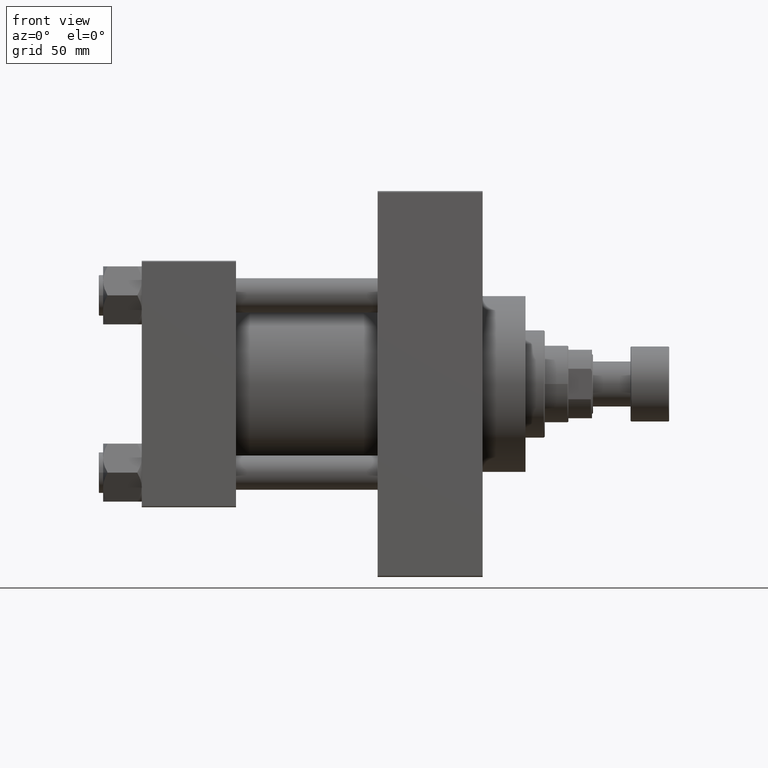
[diagram: clean part render]
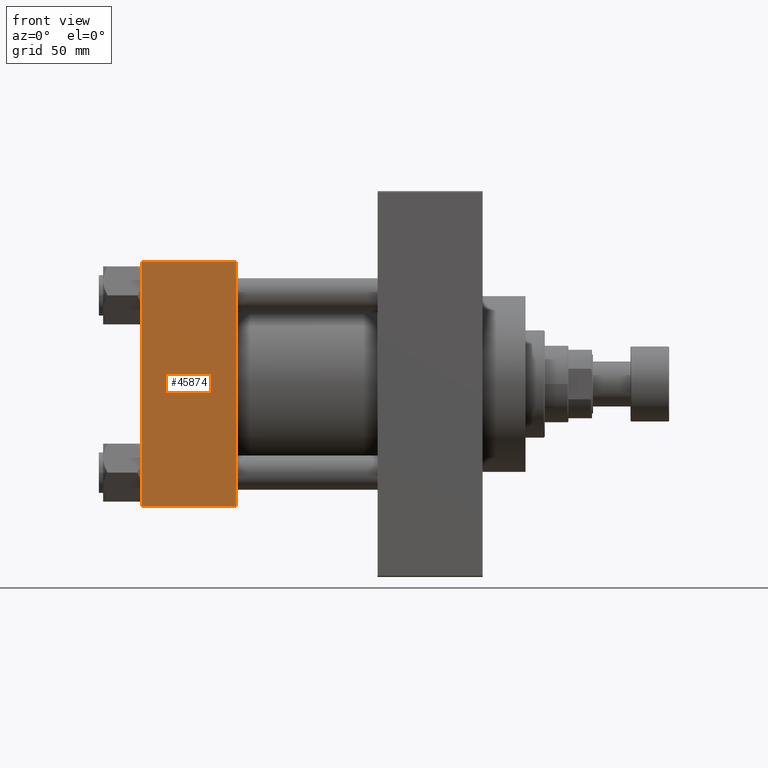
[diagram: same view with one face highlighted and labeled with its STEP entity id]
A machine part, front view. The second image highlights one B-rep face of the part: STEP entity #45874.
In plain terms, the highlighted planar face has unit normal (0, 1, 0).
Its self-contained STEP definition (entity closure, byte-faithful):
#427 = VECTOR ( 'NONE', #15206, 1000.000000000000000 ) ;
#2310 = AXIS2_PLACEMENT_3D ( 'NONE', #30068, #44427, #22270 ) ;
#2466 = DIRECTION ( 'NONE',  ( 1.000000000000000000, 0.000000000000000000, 0.000000000000000000 ) ) ;
#2855 = EDGE_CURVE ( 'NONE', #34028, #26543, #12947, .T. ) ;
#4113 = CARTESIAN_POINT ( 'NONE',  ( 0.000000000000000000, -57.50000000000000711, 57.00000000000000711 ) ) ;
#4400 = CARTESIAN_POINT ( 'NONE',  ( 44.00000000000000000, -57.50000000000000711, 57.00000000000000711 ) ) ;
#4475 = CARTESIAN_POINT ( 'NONE',  ( 0.000000000000000000, -57.50000000000000711, -57.00000000000000711 ) ) ;
#6117 = LINE ( 'NONE', #46044, #27859 ) ;
#6197 = VERTEX_POINT ( 'NONE', #4400 ) ;
#7821 = VERTEX_POINT ( 'NONE', #4113 ) ;
#10242 = ORIENTED_EDGE ( 'NONE', *, *, #38422, .T. ) ;
#11078 = CARTESIAN_POINT ( 'NONE',  ( 44.00000000000000000, -57.50000000000000711, 57.49999999999999289 ) ) ;
#12947 = LINE ( 'NONE', #38985, #36439 ) ;
#14698 = ORIENTED_EDGE ( 'NONE', *, *, #47608, .T. ) ;
#15206 = DIRECTION ( 'NONE',  ( 0.000000000000000000, 0.000000000000000000, -1.000000000000000000 ) ) ;
#15255 = CARTESIAN_POINT ( 'NONE',  ( 44.00000000000000000, -57.50000000000000711, -57.00000000000000711 ) ) ;
#22270 = DIRECTION ( 'NONE',  ( 0.000000000000000000, -0.000000000000000000, 1.000000000000000000 ) ) ;
#24963 = PLANE ( 'NONE',  #2310 ) ;
#26166 = VECTOR ( 'NONE', #27202, 1000.000000000000000 ) ;
#26543 = VERTEX_POINT ( 'NONE', #15255 ) ;
#27202 = DIRECTION ( 'NONE',  ( 0.000000000000000000, 0.000000000000000000, -1.000000000000000000 ) ) ;
#27859 = VECTOR ( 'NONE', #28266, 1000.000000000000000 ) ;
#28266 = DIRECTION ( 'NONE',  ( -1.000000000000000000, 0.000000000000000000, 0.000000000000000000 ) ) ;
#30068 = CARTESIAN_POINT ( 'NONE',  ( 44.00000000000000000, -57.50000000000000711, 57.49999999999999289 ) ) ;
#34028 = VERTEX_POINT ( 'NONE', #4475 ) ;
#34189 = LINE ( 'NONE', #11078, #427 ) ;
#34757 = LINE ( 'NONE', #46914, #26166 ) ;
#34950 = EDGE_CURVE ( 'NONE', #6197, #26543, #34189, .T. ) ;
#35084 = ORIENTED_EDGE ( 'NONE', *, *, #34950, .F. ) ;
#35937 = FACE_OUTER_BOUND ( 'NONE', #39827, .T. ) ;
#36439 = VECTOR ( 'NONE', #2466, 1000.000000000000000 ) ;
#38422 = EDGE_CURVE ( 'NONE', #7821, #34028, #34757, .T. ) ;
#38985 = CARTESIAN_POINT ( 'NONE',  ( 44.00000000000000000, -57.50000000000000711, -57.00000000000000711 ) ) ;
#39827 = EDGE_LOOP ( 'NONE', ( #10242, #41749, #35084, #14698 ) ) ;
#41749 = ORIENTED_EDGE ( 'NONE', *, *, #2855, .T. ) ;
#44427 = DIRECTION ( 'NONE',  ( -0.000000000000000000, 1.000000000000000000, 0.000000000000000000 ) ) ;
#45874 = ADVANCED_FACE ( 'NONE', ( #35937 ), #24963, .F. ) ;
#46044 = CARTESIAN_POINT ( 'NONE',  ( 44.00000000000000000, -57.50000000000000711, 57.00000000000000711 ) ) ;
#46914 = CARTESIAN_POINT ( 'NONE',  ( 0.000000000000000000, -57.50000000000000711, 57.49999999999999289 ) ) ;
#47608 = EDGE_CURVE ( 'NONE', #6197, #7821, #6117, .T. ) ;